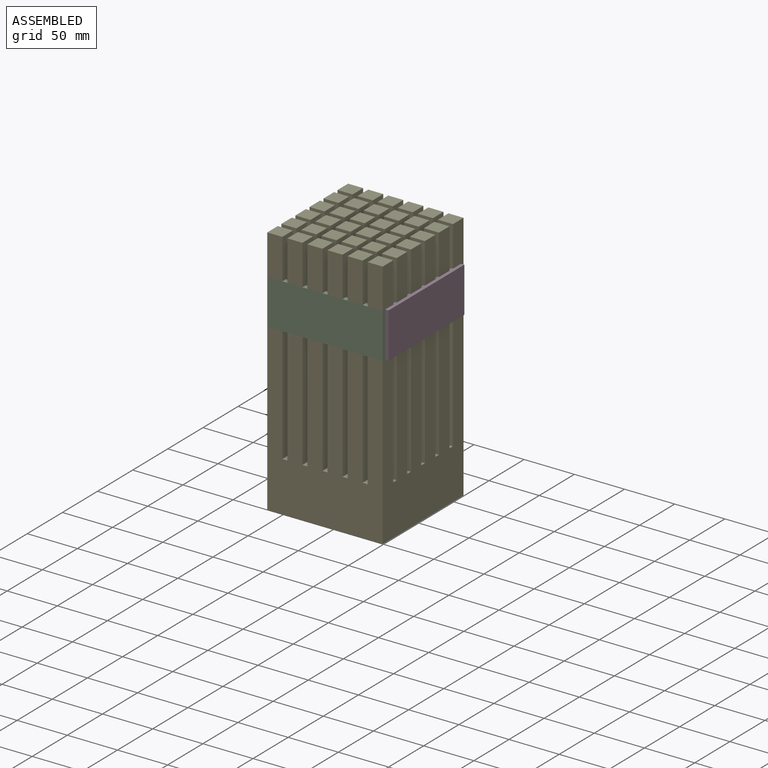
[diagram: assembled view]
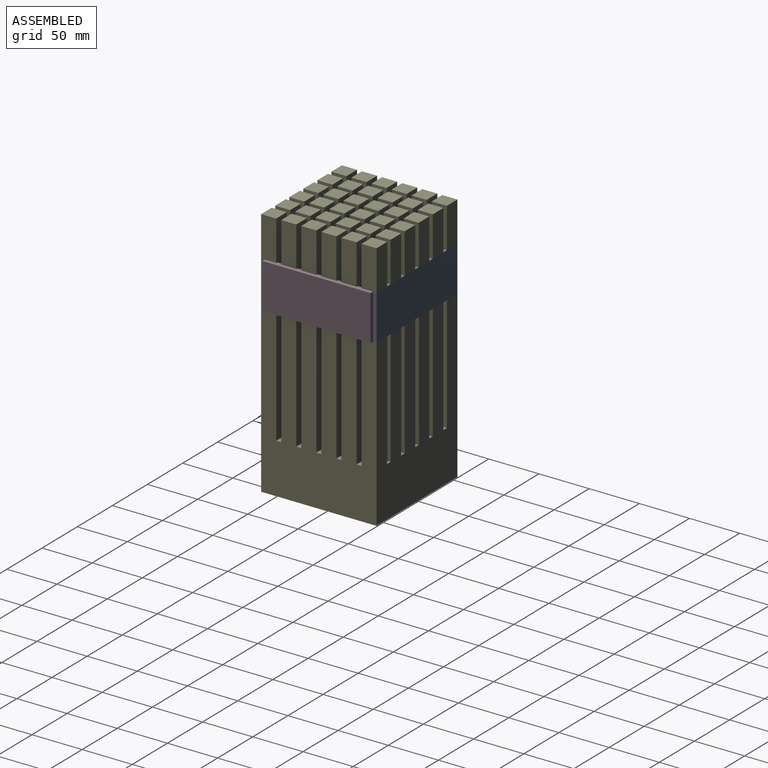
[diagram: assembled view, second angle]
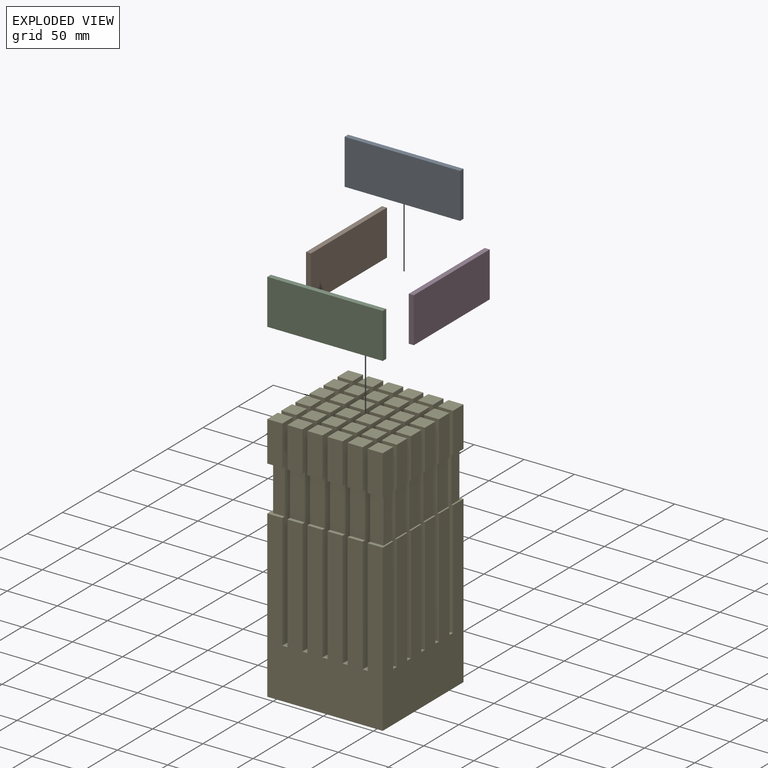
[diagram: exploded view]
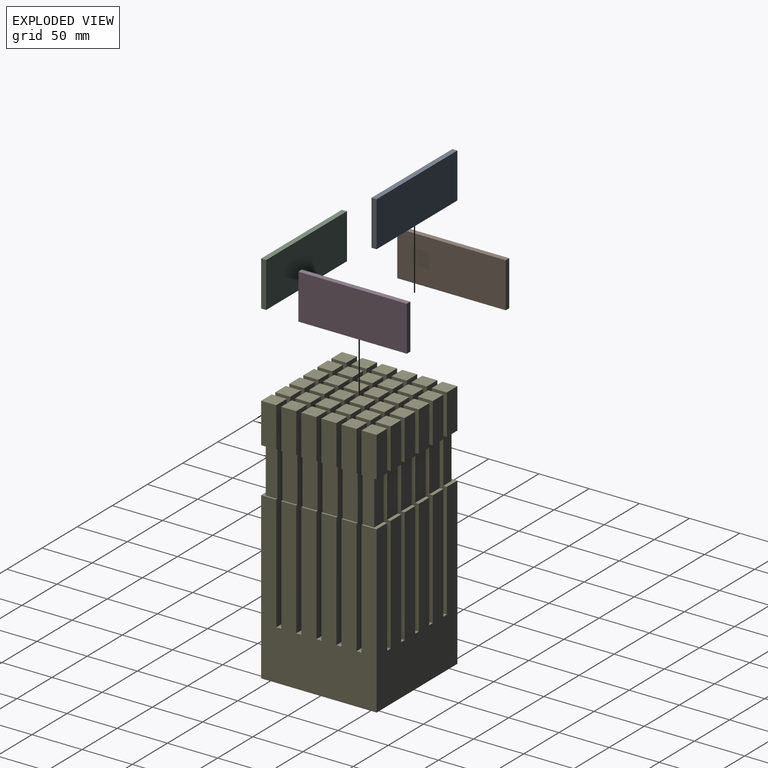
[diagram: exploded view, second angle]
ASSEMBLY  parts=5 mates=4
PART A: 6 faces, bbox 115x5x45 mm
  f0: plane 115x5mm, normal (0,0,1), area 575mm2, adj f1,f3,f4,f5
  f1: plane 45x5mm, normal (-1,0,0), area 225mm2, adj f0,f2,f4,f5
  f2: plane 115x5mm, normal (0,0,-1), area 575mm2, adj f1,f3,f4,f5
  f3: plane 45x5mm, normal (1,0,0), area 225mm2, adj f0,f2,f4,f5
  f4: plane 115x45mm, normal (0,1,0), area 5175mm2, adj f0,f1,f2,f3
  f5: plane 115x45mm, normal (0,-1,0), area 5175mm2, adj f0,f1,f2,f3
PART B: 6 faces, bbox 5x108x45 mm
  f0: plane 45x5mm, normal (0,1,0), area 225mm2, adj f1,f3,f4,f5
  f1: plane 108x5mm, normal (0,0,1), area 540mm2, adj f0,f2,f4,f5
  f2: plane 45x5mm, normal (0,-1,0), area 225mm2, adj f1,f3,f4,f5
  f3: plane 108x5mm, normal (0,0,-1), area 540mm2, adj f0,f2,f4,f5
  f4: plane 108x45mm, normal (-1,0,0), area 4860mm2, adj f0,f1,f2,f3
  f5: plane 108x45mm, normal (1,0,0), area 4860mm2, adj f0,f1,f2,f3
PART C: 6 faces, bbox 115x5x45 mm
  f0: plane 115x5mm, normal (0,0,1), area 575mm2, adj f1,f3,f4,f5
  f1: plane 45x5mm, normal (-1,0,0), area 225mm2, adj f0,f2,f4,f5
  f2: plane 115x5mm, normal (0,0,-1), area 575mm2, adj f1,f3,f4,f5
  f3: plane 45x5mm, normal (1,0,0), area 225mm2, adj f0,f2,f4,f5
  f4: plane 115x45mm, normal (0,-1,0), area 5175mm2, adj f0,f1,f2,f3
  f5: plane 115x45mm, normal (0,1,0), area 5175mm2, adj f0,f1,f2,f3
PART D: 6 faces, bbox 5x108x45 mm
  f0: plane 45x5mm, normal (0,1,0), area 225mm2, adj f1,f3,f4,f5
  f1: plane 108x5mm, normal (0,0,1), area 540mm2, adj f0,f2,f4,f5
  f2: plane 45x5mm, normal (0,-1,0), area 225mm2, adj f1,f3,f4,f5
  f3: plane 108x5mm, normal (0,0,-1), area 540mm2, adj f0,f2,f4,f5
  f4: plane 108x45mm, normal (1,0,0), area 4860mm2, adj f0,f1,f2,f3
  f5: plane 108x45mm, normal (-1,0,0), area 4860mm2, adj f0,f1,f2,f3
PART E: 250 faces, bbox 115x115x250 mm
  f0: plane 40x15mm, normal (1,0,0), area 600mm2, adj f15,f50,f187,f190
  f1: plane 40x15mm, normal (1,0,0), area 600mm2, adj f13,f14,f185,f239
  f2: plane 40x15mm, normal (1,0,0), area 600mm2, adj f11,f12,f183,f242
  f3: plane 40x15mm, normal (1,0,0), area 600mm2, adj f9,f10,f181,f245
  f4: plane 40x15mm, normal (1,0,0), area 600mm2, adj f7,f8,f179,f248
  f5: plane 40x15mm, normal (1,0,0), area 600mm2, adj f6,f25,f177,f207
  f6: plane 200x15mm, normal (0,-1,0), area 2926mm2, adj f5,f24,f40,f47,f177,f206,f207,f249
  f7: plane 200x15mm, normal (0,1,0), area 2926mm2, adj f4,f24,f47,f178,f179,f246,f247,f248
  f8: plane 200x15mm, normal (0,-1,0), area 2926mm2, adj f4,f24,f47,f178,f179,f246,f247,f248
  f9: plane 200x15mm, normal (0,-1,0), area 2926mm2, adj f3,f24,f47,f180,f181,f243,f244,f245
  f10: plane 200x15mm, normal (0,1,0), area 2926mm2, adj f3,f24,f47,f180,f181,f243,f244,f245
  f11: plane 200x15mm, normal (0,-1,0), area 2926mm2, adj f2,f24,f47,f182,f183,f240,f241,f242
  f12: plane 200x15mm, normal (0,1,0), area 2926mm2, adj f2,f24,f47,f182,f183,f240,f241,f242
  f13: plane 200x15mm, normal (0,-1,0), area 2926mm2, adj f1,f24,f47,f184,f185,f237,f238,f239
  f14: plane 200x15mm, normal (0,1,0), area 2926mm2, adj f1,f24,f47,f184,f185,f237,f238,f239
  f15: plane 200x15mm, normal (0,1,0), area 2926mm2, adj f0,f24,f47,f186,f187,f189,f190,f236
  f16: plane 45x11.64mm, normal (0,-1,0), area 524mm2, adj f71,f203,f204,f222
  f17: plane 45x11.64mm, normal (0,1,0), area 524mm2, adj f31,f220,f221,f235
  f18: plane 165x115mm, normal (-1,0,0), area 16100mm2, adj f41,f47,f48,f51,f52,f54,f55,f58
  f19: plane 40x15mm, normal (-1,0,0), area 600mm2, adj f30,f52,f53,f220
  f20: plane 40x15mm, normal (-1,0,0), area 600mm2, adj f54,f55,f57,f234
  f21: plane 40x15mm, normal (-1,0,0), area 600mm2, adj f58,f59,f61,f231
  f22: plane 40x15mm, normal (-1,0,0), area 600mm2, adj f62,f63,f65,f228
  f23: plane 40x15mm, normal (-1,0,0), area 600mm2, adj f66,f67,f69,f225
  f24: plane 165x115mm, normal (1,0,0), area 16100mm2, adj f6,f7,f8,f9,f10,f11,f12,f13
  f25: plane 40x15mm, normal (0,1,0), area 600mm2, adj f5,f40,f177,f207
  f26: plane 40x15mm, normal (0,1,0), area 600mm2, adj f38,f39,f152,f210
  f27: plane 40x15mm, normal (0,1,0), area 600mm2, adj f36,f37,f126,f213
  f28: plane 40x15mm, normal (0,1,0), area 600mm2, adj f34,f35,f100,f216
  f29: plane 40x15mm, normal (0,1,0), area 600mm2, adj f32,f33,f74,f219
  f30: plane 40x15mm, normal (0,1,0), area 600mm2, adj f19,f31,f53,f220
  f31: plane 200x15mm, normal (1,0,0), area 2841.8mm2, adj f17,f30,f47,f48,f52,f53,f220,f221
  f32: plane 200x15mm, normal (-1,0,0), area 2841.8mm2, adj f29,f47,f48,f73,f74,f217,f218,f219
  f33: plane 200x15mm, normal (1,0,0), area 2841.8mm2, adj f29,f47,f48,f73,f74,f217,f218,f219
  f34: plane 200x15mm, normal (-1,0,0), area 2841.8mm2, adj f28,f47,f48,f99,f100,f214,f215,f216
  f35: plane 200x15mm, normal (1,0,0), area 2841.8mm2, adj f28,f47,f48,f99,f100,f214,f215,f216
  f36: plane 200x15mm, normal (-1,0,0), area 2841.8mm2, adj f27,f47,f48,f125,f126,f211,f212,f213
  f37: plane 200x15mm, normal (1,0,0), area 2841.8mm2, adj f27,f47,f48,f125,f126,f211,f212,f213
  f38: plane 200x15mm, normal (-1,0,0), area 2841.8mm2, adj f26,f47,f48,f151,f152,f208,f209,f210
  f39: plane 200x15mm, normal (1,0,0), area 2841.8mm2, adj f26,f47,f48,f151,f152,f208,f209,f210
  f40: plane 200x15mm, normal (-1,0,0), area 2841.8mm2, adj f6,f25,f47,f48,f177,f205,f206,f207
  f41: plane 165x115mm, normal (0,-1,0), area 16100mm2, adj f18,f24,f47,f51,f71,f96,f97,f122
  f42: plane 40x15mm, normal (0,-1,0), area 600mm2, adj f49,f71,f72,f203
  f43: plane 40x15mm, normal (0,-1,0), area 600mm2, adj f96,f97,f98,f202
  f44: plane 40x15mm, normal (0,-1,0), area 600mm2, adj f122,f123,f124,f199
  f45: plane 40x15mm, normal (0,-1,0), area 600mm2, adj f148,f149,f150,f196
  f46: plane 40x15mm, normal (0,-1,0), area 600mm2, adj f174,f175,f176,f193
  f47: plane 115x115mm, normal (0,0,1), area 5125mm2, adj f6,f7,f8,f9,f10,f11,f12,f13
  f48: plane 165x115mm, normal (0,1,0), area 16100mm2, adj f18,f24,f31,f32,f33,f34,f35,f36
  f49: plane 40x15mm, normal (-1,0,0), area 600mm2, adj f42,f70,f72,f203
  f50: plane 40x15mm, normal (0,-1,0), area 600mm2, adj f0,f186,f187,f190
  f51: plane 115x115mm, normal (0,0,-1), area 13225mm2, adj f18,f24,f41,f48
  f52: plane 200x15mm, normal (0,-1,0), area 2849mm2, adj f18,f19,f31,f47,f53,f220,f221,f235
  f53: plane 15x15mm, normal (0,0,1), area 225mm2, adj f19,f30,f31,f52
  f54: plane 200x15mm, normal (0,1,0), area 2849mm2, adj f18,f20,f47,f56,f57,f232,f233,f234
  f55: plane 200x15mm, normal (0,-1,0), area 2849mm2, adj f18,f20,f47,f56,f57,f232,f233,f234
  f56: plane 200x15mm, normal (1,0,0), area 3000mm2, adj f47,f54,f55,f57
  f57: plane 15x15mm, normal (0,0,1), area 225mm2, adj f20,f54,f55,f56
  f58: plane 200x15mm, normal (0,1,0), area 2849mm2, adj f18,f21,f47,f60,f61,f229,f230,f231
  f59: plane 200x15mm, normal (0,-1,0), area 2849mm2, adj f18,f21,f47,f60,f61,f229,f230,f231
  f60: plane 200x15mm, normal (1,0,0), area 3000mm2, adj f47,f58,f59,f61
  f61: plane 15x15mm, normal (0,0,1), area 225mm2, adj f21,f58,f59,f60
  f62: plane 200x15mm, normal (0,1,0), area 2849mm2, adj f18,f22,f47,f64,f65,f226,f227,f228
  f63: plane 200x15mm, normal (0,-1,0), area 2849mm2, adj f18,f22,f47,f64,f65,f226,f227,f228
  f64: plane 200x15mm, normal (1,0,0), area 3000mm2, adj f47,f62,f63,f65
  f65: plane 15x15mm, normal (0,0,1), area 225mm2, adj f22,f62,f63,f64
  f66: plane 200x15mm, normal (0,1,0), area 2849mm2, adj f18,f23,f47,f68,f69,f223,f224,f225
  f67: plane 200x15mm, normal (0,-1,0), area 2849mm2, adj f18,f23,f47,f68,f69,f223,f224,f225
  f68: plane 200x15mm, normal (1,0,0), area 3000mm2, adj f47,f66,f67,f69
  f69: plane 15x15mm, normal (0,0,1), area 225mm2, adj f23,f66,f67,f68
  f70: plane 200x15mm, normal (0,1,0), area 2849mm2, adj f18,f47,f49,f71,f72,f203,f204,f222
  f71: plane 200x15mm, normal (1,0,0), area 2843.2mm2, adj f16,f41,f42,f47,f70,f72,f203,f204
  f72: plane 15x15mm, normal (0,0,1), area 225mm2, adj f42,f49,f70,f71
  f73: plane 200x15mm, normal (0,-1,0), area 3000mm2, adj f32,f33,f47,f74
  f74: plane 15x15mm, normal (0,0,1), area 225mm2, adj f29,f32,f33,f73
  f75: plane 200x15mm, normal (0,1,0), area 3000mm2, adj f47,f76,f78,f79
  f76: plane 200x15mm, normal (-1,0,0), area 3000mm2, adj f47,f75,f77,f79
  f77: plane 200x15mm, normal (0,-1,0), area 3000mm2, adj f47,f76,f78,f79
  f78: plane 200x15mm, normal (1,0,0), area 3000mm2, adj f47,f75,f77,f79
  f79: plane 15x15mm, normal (0,0,1), area 225mm2, adj f75,f76,f77,f78
  f80: plane 200x15mm, normal (0,1,0), area 3000mm2, adj f47,f81,f83,f84
  f81: plane 200x15mm, normal (-1,0,0), area 3000mm2, adj f47,f80,f82,f84
  f82: plane 200x15mm, normal (0,-1,0), area 3000mm2, adj f47,f81,f83,f84
  f83: plane 200x15mm, normal (1,0,0), area 3000mm2, adj f47,f80,f82,f84
  f84: plane 15x15mm, normal (0,0,1), area 225mm2, adj f80,f81,f82,f83
  f85: plane 200x15mm, normal (0,1,0), area 3000mm2, adj f47,f86,f88,f89
  f86: plane 200x15mm, normal (-1,0,0), area 3000mm2, adj f47,f85,f87,f89
  f87: plane 200x15mm, normal (0,-1,0), area 3000mm2, adj f47,f86,f88,f89
  f88: plane 200x15mm, normal (1,0,0), area 3000mm2, adj f47,f85,f87,f89
  f89: plane 15x15mm, normal (0,0,1), area 225mm2, adj f85,f86,f87,f88
  f90: plane 200x15mm, normal (0,1,0), area 3000mm2, adj f47,f91,f93,f94
  f91: plane 200x15mm, normal (-1,0,0), area 3000mm2, adj f47,f90,f92,f94
  f92: plane 200x15mm, normal (0,-1,0), area 3000mm2, adj f47,f91,f93,f94
  f93: plane 200x15mm, normal (1,0,0), area 3000mm2, adj f47,f90,f92,f94
  f94: plane 15x15mm, normal (0,0,1), area 225mm2, adj f90,f91,f92,f93
  f95: plane 200x15mm, normal (0,1,0), area 3000mm2, adj f47,f96,f97,f98
  f96: plane 200x15mm, normal (-1,0,0), area 2843.2mm2, adj f41,f43,f47,f95,f98,f200,f201,f202
  f97: plane 200x15mm, normal (1,0,0), area 2843.2mm2, adj f41,f43,f47,f95,f98,f200,f201,f202
  f98: plane 15x15mm, normal (0,0,1), area 225mm2, adj f43,f95,f96,f97
  f99: plane 200x15mm, normal (0,-1,0), area 3000mm2, adj f34,f35,f47,f100
  f100: plane 15x15mm, normal (0,0,1), area 225mm2, adj f28,f34,f35,f99
  f101: plane 200x15mm, normal (0,1,0), area 3000mm2, adj f47,f102,f104,f105
  f102: plane 200x15mm, normal (-1,0,0), area 3000mm2, adj f47,f101,f103,f105
  f103: plane 200x15mm, normal (0,-1,0), area 3000mm2, adj f47,f102,f104,f105
  f104: plane 200x15mm, normal (1,0,0), area 3000mm2, adj f47,f101,f103,f105
  f105: plane 15x15mm, normal (0,0,1), area 225mm2, adj f101,f102,f103,f104
  f106: plane 200x15mm, normal (0,1,0), area 3000mm2, adj f47,f107,f109,f110
  f107: plane 200x15mm, normal (-1,0,0), area 3000mm2, adj f47,f106,f108,f110
  f108: plane 200x15mm, normal (0,-1,0), area 3000mm2, adj f47,f107,f109,f110
  f109: plane 200x15mm, normal (1,0,0), area 3000mm2, adj f47,f106,f108,f110
  f110: plane 15x15mm, normal (0,0,1), area 225mm2, adj f106,f107,f108,f109
  f111: plane 200x15mm, normal (0,1,0), area 3000mm2, adj f47,f112,f114,f115
  f112: plane 200x15mm, normal (-1,0,0), area 3000mm2, adj f47,f111,f113,f115
  f113: plane 200x15mm, normal (0,-1,0), area 3000mm2, adj f47,f112,f114,f115
  f114: plane 200x15mm, normal (1,0,0), area 3000mm2, adj f47,f111,f113,f115
  f115: plane 15x15mm, normal (0,0,1), area 225mm2, adj f111,f112,f113,f114
  f116: plane 200x15mm, normal (0,1,0), area 3000mm2, adj f47,f117,f119,f120
  f117: plane 200x15mm, normal (-1,0,0), area 3000mm2, adj f47,f116,f118,f120
  f118: plane 200x15mm, normal (0,-1,0), area 3000mm2, adj f47,f117,f119,f120
  f119: plane 200x15mm, normal (1,0,0), area 3000mm2, adj f47,f116,f118,f120
  f120: plane 15x15mm, normal (0,0,1), area 225mm2, adj f116,f117,f118,f119
  f121: plane 200x15mm, normal (0,1,0), area 3000mm2, adj f47,f122,f123,f124
  f122: plane 200x15mm, normal (-1,0,0), area 2843.2mm2, adj f41,f44,f47,f121,f124,f197,f198,f199
  f123: plane 200x15mm, normal (1,0,0), area 2843.2mm2, adj f41,f44,f47,f121,f124,f197,f198,f199
  f124: plane 15x15mm, normal (0,0,1), area 225mm2, adj f44,f121,f122,f123
  f125: plane 200x15mm, normal (0,-1,0), area 3000mm2, adj f36,f37,f47,f126
  f126: plane 15x15mm, normal (0,0,1), area 225mm2, adj f27,f36,f37,f125
  f127: plane 200x15mm, normal (0,1,0), area 3000mm2, adj f47,f128,f130,f131
  f128: plane 200x15mm, normal (-1,0,0), area 3000mm2, adj f47,f127,f129,f131
  f129: plane 200x15mm, normal (0,-1,0), area 3000mm2, adj f47,f128,f130,f131
  f130: plane 200x15mm, normal (1,0,0), area 3000mm2, adj f47,f127,f129,f131
  f131: plane 15x15mm, normal (0,0,1), area 225mm2, adj f127,f128,f129,f130
  f132: plane 200x15mm, normal (0,1,0), area 3000mm2, adj f47,f133,f135,f136
  f133: plane 200x15mm, normal (-1,0,0), area 3000mm2, adj f47,f132,f134,f136
  f134: plane 200x15mm, normal (0,-1,0), area 3000mm2, adj f47,f133,f135,f136
  f135: plane 200x15mm, normal (1,0,0), area 3000mm2, adj f47,f132,f134,f136
  f136: plane 15x15mm, normal (0,0,1), area 225mm2, adj f132,f133,f134,f135
  f137: plane 200x15mm, normal (0,1,0), area 3000mm2, adj f47,f138,f140,f141
  f138: plane 200x15mm, normal (-1,0,0), area 3000mm2, adj f47,f137,f139,f141
  f139: plane 200x15mm, normal (0,-1,0), area 3000mm2, adj f47,f138,f140,f141
  f140: plane 200x15mm, normal (1,0,0), area 3000mm2, adj f47,f137,f139,f141
  f141: plane 15x15mm, normal (0,0,1), area 225mm2, adj f137,f138,f139,f140
  f142: plane 200x15mm, normal (0,1,0), area 3000mm2, adj f47,f143,f145,f146
  f143: plane 200x15mm, normal (-1,0,0), area 3000mm2, adj f47,f142,f144,f146
  f144: plane 200x15mm, normal (0,-1,0), area 3000mm2, adj f47,f143,f145,f146
  f145: plane 200x15mm, normal (1,0,0), area 3000mm2, adj f47,f142,f144,f146
  f146: plane 15x15mm, normal (0,0,1), area 225mm2, adj f142,f143,f144,f145
  f147: plane 200x15mm, normal (0,1,0), area 3000mm2, adj f47,f148,f149,f150
  f148: plane 200x15mm, normal (-1,0,0), area 2843.2mm2, adj f41,f45,f47,f147,f150,f194,f195,f196
  f149: plane 200x15mm, normal (1,0,0), area 2843.2mm2, adj f41,f45,f47,f147,f150,f194,f195,f196
  f150: plane 15x15mm, normal (0,0,1), area 225mm2, adj f45,f147,f148,f149
  f151: plane 200x15mm, normal (0,-1,0), area 3000mm2, adj f38,f39,f47,f152
  f152: plane 15x15mm, normal (0,0,1), area 225mm2, adj f26,f38,f39,f151
  f153: plane 200x15mm, normal (0,1,0), area 3000mm2, adj f47,f154,f156,f157
  f154: plane 200x15mm, normal (-1,0,0), area 3000mm2, adj f47,f153,f155,f157
  f155: plane 200x15mm, normal (0,-1,0), area 3000mm2, adj f47,f154,f156,f157
  f156: plane 200x15mm, normal (1,0,0), area 3000mm2, adj f47,f153,f155,f157
  f157: plane 15x15mm, normal (0,0,1), area 225mm2, adj f153,f154,f155,f156
  f158: plane 200x15mm, normal (0,1,0), area 3000mm2, adj f47,f159,f161,f162
  f159: plane 200x15mm, normal (-1,0,0), area 3000mm2, adj f47,f158,f160,f162
  f160: plane 200x15mm, normal (0,-1,0), area 3000mm2, adj f47,f159,f161,f162
  f161: plane 200x15mm, normal (1,0,0), area 3000mm2, adj f47,f158,f160,f162
  f162: plane 15x15mm, normal (0,0,1), area 225mm2, adj f158,f159,f160,f161
  f163: plane 200x15mm, normal (0,1,0), area 3000mm2, adj f47,f164,f166,f167
  f164: plane 200x15mm, normal (-1,0,0), area 3000mm2, adj f47,f163,f165,f167
  f165: plane 200x15mm, normal (0,-1,0), area 3000mm2, adj f47,f164,f166,f167
  f166: plane 200x15mm, normal (1,0,0), area 3000mm2, adj f47,f163,f165,f167
  f167: plane 15x15mm, normal (0,0,1), area 225mm2, adj f163,f164,f165,f166
  f168: plane 200x15mm, normal (0,1,0), area 3000mm2, adj f47,f169,f171,f172
  f169: plane 200x15mm, normal (-1,0,0), area 3000mm2, adj f47,f168,f170,f172
  f170: plane 200x15mm, normal (0,-1,0), area 3000mm2, adj f47,f169,f171,f172
  f171: plane 200x15mm, normal (1,0,0), area 3000mm2, adj f47,f168,f170,f172
  f172: plane 15x15mm, normal (0,0,1), area 225mm2, adj f168,f169,f170,f171
  f173: plane 200x15mm, normal (0,1,0), area 3000mm2, adj f47,f174,f175,f176
  f174: plane 200x15mm, normal (-1,0,0), area 2843.2mm2, adj f41,f46,f47,f173,f176,f191,f192,f193
  f175: plane 200x15mm, normal (1,0,0), area 2843.2mm2, adj f41,f46,f47,f173,f176,f191,f192,f193
  f176: plane 15x15mm, normal (0,0,1), area 225mm2, adj f46,f173,f174,f175
  f177: plane 15x15mm, normal (0,0,1), area 225mm2, adj f5,f6,f25,f40
  f178: plane 200x15mm, normal (-1,0,0), area 3000mm2, adj f7,f8,f47,f179
  f179: plane 15x15mm, normal (0,0,1), area 225mm2, adj f4,f7,f8,f178
  f180: plane 200x15mm, normal (-1,0,0), area 3000mm2, adj f9,f10,f47,f181
  f181: plane 15x15mm, normal (0,0,1), area 225mm2, adj f3,f9,f10,f180
  f182: plane 200x15mm, normal (-1,0,0), area 3000mm2, adj f11,f12,f47,f183
  f183: plane 15x15mm, normal (0,0,1), area 225mm2, adj f2,f11,f12,f182
  f184: plane 200x15mm, normal (-1,0,0), area 3000mm2, adj f13,f14,f47,f185
  f185: plane 15x15mm, normal (0,0,1), area 225mm2, adj f1,f13,f14,f184
  f186: plane 200x15mm, normal (-1,0,0), area 2843.2mm2, adj f15,f41,f47,f50,f187,f188,f189,f190
  f187: plane 15x15mm, normal (0,0,1), area 225mm2, adj f0,f15,f50,f186
  f188: plane 45x13.36mm, normal (0,-1,0), area 601mm2, adj f186,f189,f190,f236
  f189: plane 15x15mm, normal (0,0,1), area 71.2mm2, adj f15,f24,f41,f186,f188,f236
  f190: plane 15x15mm, normal (0,0,-1), area 71.2mm2, adj f0,f15,f50,f186,f188,f236
  f191: plane 45x15mm, normal (0,-1,0), area 675mm2, adj f174,f175,f192,f193
  f192: plane 15x3.49mm, normal (0,0,1), area 52.3mm2, adj f41,f174,f175,f191
  f193: plane 15x3.49mm, normal (0,0,-1), area 52.3mm2, adj f46,f174,f175,f191
  f194: plane 45x15mm, normal (0,-1,0), area 675mm2, adj f148,f149,f195,f196
  f195: plane 15x3.49mm, normal (0,0,1), area 52.3mm2, adj f41,f148,f149,f194
  f196: plane 15x3.49mm, normal (0,0,-1), area 52.3mm2, adj f45,f148,f149,f194
  f197: plane 45x15mm, normal (0,-1,0), area 675mm2, adj f122,f123,f198,f199
  f198: plane 15x3.49mm, normal (0,0,1), area 52.3mm2, adj f41,f122,f123,f197
  f199: plane 15x3.49mm, normal (0,0,-1), area 52.3mm2, adj f44,f122,f123,f197
  f200: plane 45x15mm, normal (0,-1,0), area 675mm2, adj f96,f97,f201,f202
  f201: plane 15x3.49mm, normal (0,0,1), area 52.3mm2, adj f41,f96,f97,f200
  f202: plane 15x3.49mm, normal (0,0,-1), area 52.3mm2, adj f43,f96,f97,f200
  f203: plane 15x15mm, normal (0,0,-1), area 90.9mm2, adj f16,f42,f49,f70,f71,f222
  f204: plane 15x15mm, normal (0,0,1), area 90.9mm2, adj f16,f18,f41,f70,f71,f222
  f205: plane 45x13.36mm, normal (0,1,0), area 601mm2, adj f40,f206,f207,f249
  f206: plane 15x15mm, normal (0,0,1), area 71.6mm2, adj f6,f24,f40,f48,f205,f249
  f207: plane 15x15mm, normal (0,0,-1), area 71.6mm2, adj f5,f6,f25,f40,f205,f249
  f208: plane 45x15mm, normal (0,1,0), area 675mm2, adj f38,f39,f209,f210
  f209: plane 15x3.51mm, normal (0,0,1), area 52.7mm2, adj f38,f39,f48,f208
  f210: plane 15x3.51mm, normal (0,0,-1), area 52.7mm2, adj f26,f38,f39,f208
  f211: plane 45x15mm, normal (0,1,0), area 675mm2, adj f36,f37,f212,f213
  f212: plane 15x3.51mm, normal (0,0,1), area 52.7mm2, adj f36,f37,f48,f211
  f213: plane 15x3.51mm, normal (0,0,-1), area 52.7mm2, adj f27,f36,f37,f211
  f214: plane 45x15mm, normal (0,1,0), area 675mm2, adj f34,f35,f215,f216
  f215: plane 15x3.51mm, normal (0,0,1), area 52.7mm2, adj f34,f35,f48,f214
  f216: plane 15x3.51mm, normal (0,0,-1), area 52.7mm2, adj f28,f34,f35,f214
  f217: plane 45x15mm, normal (0,1,0), area 675mm2, adj f32,f33,f218,f219
  f218: plane 15x3.51mm, normal (0,0,1), area 52.7mm2, adj f32,f33,f48,f217
  f219: plane 15x3.51mm, normal (0,0,-1), area 52.7mm2, adj f29,f32,f33,f217
  f220: plane 15x15mm, normal (0,0,-1), area 91.3mm2, adj f17,f19,f30,f31,f52,f235
  f221: plane 15x15mm, normal (0,0,1), area 91.3mm2, adj f17,f18,f31,f48,f52,f235
  f222: plane 45x11.51mm, normal (-1,0,0), area 518.2mm2, adj f16,f70,f203,f204
  f223: plane 45x15mm, normal (-1,0,0), area 675mm2, adj f66,f67,f224,f225
  f224: plane 15x3.36mm, normal (0,0,1), area 50.3mm2, adj f18,f66,f67,f223
  f225: plane 15x3.36mm, normal (0,0,-1), area 50.3mm2, adj f23,f66,f67,f223
  f226: plane 45x15mm, normal (-1,0,0), area 675mm2, adj f62,f63,f227,f228
  f227: plane 15x3.36mm, normal (0,0,1), area 50.3mm2, adj f18,f62,f63,f226
  f228: plane 15x3.36mm, normal (0,0,-1), area 50.3mm2, adj f22,f62,f63,f226
  f229: plane 45x15mm, normal (-1,0,0), area 675mm2, adj f58,f59,f230,f231
  f230: plane 15x3.36mm, normal (0,0,1), area 50.3mm2, adj f18,f58,f59,f229
  f231: plane 15x3.36mm, normal (0,0,-1), area 50.3mm2, adj f21,f58,f59,f229
  f232: plane 45x15mm, normal (-1,0,0), area 675mm2, adj f54,f55,f233,f234
  f233: plane 15x3.36mm, normal (0,0,1), area 50.3mm2, adj f18,f54,f55,f232
  f234: plane 15x3.36mm, normal (0,0,-1), area 50.3mm2, adj f20,f54,f55,f232
  f235: plane 45x11.49mm, normal (-1,0,0), area 516.8mm2, adj f17,f52,f220,f221
  f236: plane 45x11.51mm, normal (1,0,0), area 518.2mm2, adj f15,f188,f189,f190
  f237: plane 45x15mm, normal (1,0,0), area 675mm2, adj f13,f14,f238,f239
  f238: plane 15x1.64mm, normal (0,0,1), area 24.7mm2, adj f13,f14,f24,f237
  f239: plane 15x1.64mm, normal (0,0,-1), area 24.7mm2, adj f1,f13,f14,f237
  f240: plane 45x15mm, normal (1,0,0), area 675mm2, adj f11,f12,f241,f242
  f241: plane 15x1.64mm, normal (0,0,1), area 24.7mm2, adj f11,f12,f24,f240
  f242: plane 15x1.64mm, normal (0,0,-1), area 24.7mm2, adj f2,f11,f12,f240
  f243: plane 45x15mm, normal (1,0,0), area 675mm2, adj f9,f10,f244,f245
  f244: plane 15x1.64mm, normal (0,0,1), area 24.7mm2, adj f9,f10,f24,f243
  f245: plane 15x1.64mm, normal (0,0,-1), area 24.7mm2, adj f3,f9,f10,f243
  f246: plane 45x15mm, normal (1,0,0), area 675mm2, adj f7,f8,f247,f248
  f247: plane 15x1.64mm, normal (0,0,1), area 24.7mm2, adj f7,f8,f24,f246
  f248: plane 15x1.64mm, normal (0,0,-1), area 24.7mm2, adj f4,f7,f8,f246
  f249: plane 45x11.49mm, normal (1,0,0), area 516.8mm2, adj f6,f205,f206,f207
PLACE A t=(0,-5.49,0)mm
PLACE B t=(12,0,0)mm
PLACE C t=(0,13.51,0)mm
PLACE D t=(-2,0,0)mm
PLACE E at identity fixed
MATE fastened C.f0 <-> E.f203  axis (0,0,1) through (-53.36,-53.49,210)mm
MATE fastened B.f1 <-> E.f203  axis (0,0,1) through (-50,-50,210)mm
MATE fastened A.f0 <-> E.f207  axis (0,0,1) through (61.64,61.51,210)mm
MATE fastened D.f1 <-> E.f190  axis (0,0,1) through (60,-50,210)mm
